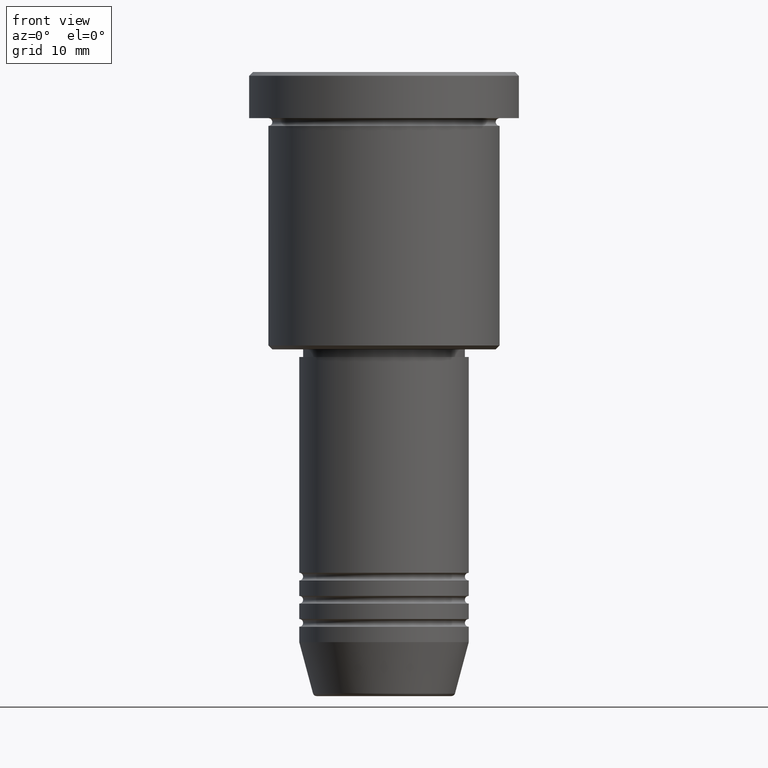
[diagram: clean part render]
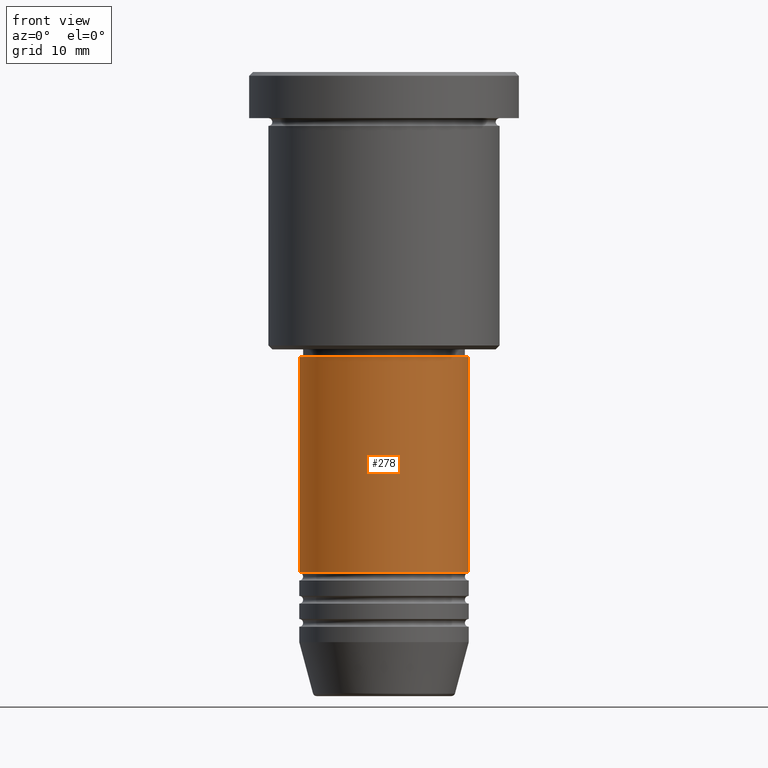
[diagram: same view with one face highlighted and labeled with its STEP entity id]
A machine part, front view. The second image highlights one B-rep face of the part: STEP entity #278.
In plain terms, the highlighted cylindrical surface (partial cylindrical patch) has radius 11 mm, axis along (-0, -0, 1).
Its self-contained STEP definition (entity closure, byte-faithful):
#13 = ORIENTED_EDGE ( 'NONE', *, *, #959, .F. ) ;
#55 = LINE ( 'NONE', #1140, #1036 ) ;
#63 = CIRCLE ( 'NONE', #745, 11.00000000000000000 ) ;
#70 = EDGE_CURVE ( 'NONE', #887, #600, #689, .T. ) ;
#110 = DIRECTION ( 'NONE',  ( -0.000000000000000000, -0.000000000000000000, 1.000000000000000000 ) ) ;
#117 = ORIENTED_EDGE ( 'NONE', *, *, #620, .T. ) ;
#125 = DIRECTION ( 'NONE',  ( 1.000000000000000000, 0.000000000000000000, 0.000000000000000000 ) ) ;
#166 = AXIS2_PLACEMENT_3D ( 'NONE', #584, #1138, #125 ) ;
#177 = CARTESIAN_POINT ( 'NONE',  ( 0.000000000000000000, 0.000000000000000000, 0.000000000000000000 ) ) ;
#212 = EDGE_CURVE ( 'NONE', #785, #753, #55, .T. ) ;
#278 = ADVANCED_FACE ( 'NONE', ( #715 ), #813, .T. ) ;
#301 = CARTESIAN_POINT ( 'NONE',  ( 11.00000000000000000, 0.000000000000000000, -64.99999999999997158 ) ) ;
#305 = ORIENTED_EDGE ( 'NONE', *, *, #212, .T. ) ;
#414 = ORIENTED_EDGE ( 'NONE', *, *, #70, .F. ) ;
#430 = DIRECTION ( 'NONE',  ( -0.000000000000000000, -0.000000000000000000, 1.000000000000000000 ) ) ;
#436 = VECTOR ( 'NONE', #110, 1000.000000000000000 ) ;
#441 = DIRECTION ( 'NONE',  ( -0.000000000000000000, -0.000000000000000000, 1.000000000000000000 ) ) ;
#584 = CARTESIAN_POINT ( 'NONE',  ( 0.000000000000000000, 0.000000000000000000, -37.00000000000000711 ) ) ;
#600 = VERTEX_POINT ( 'NONE', #989 ) ;
#620 = EDGE_CURVE ( 'NONE', #887, #785, #63, .T. ) ;
#689 = LINE ( 'NONE', #937, #436 ) ;
#715 = FACE_OUTER_BOUND ( 'NONE', #987, .T. ) ;
#719 = DIRECTION ( 'NONE',  ( 1.000000000000000000, 0.000000000000000000, 0.000000000000000000 ) ) ;
#745 = AXIS2_PLACEMENT_3D ( 'NONE', #798, #441, #719 ) ;
#753 = VERTEX_POINT ( 'NONE', #1117 ) ;
#779 = AXIS2_PLACEMENT_3D ( 'NONE', #177, #1079, #1103 ) ;
#785 = VERTEX_POINT ( 'NONE', #301 ) ;
#798 = CARTESIAN_POINT ( 'NONE',  ( 0.000000000000000000, 0.000000000000000000, -64.99999999999997158 ) ) ;
#813 = CYLINDRICAL_SURFACE ( 'NONE', #779, 11.00000000000000000 ) ;
#824 = CIRCLE ( 'NONE', #166, 11.00000000000000000 ) ;
#867 = CARTESIAN_POINT ( 'NONE',  ( -11.00000000000000000, 1.347111479062088405E-15, -64.99999999999997158 ) ) ;
#887 = VERTEX_POINT ( 'NONE', #867 ) ;
#937 = CARTESIAN_POINT ( 'NONE',  ( -11.00000000000000000, 1.347111479062088405E-15, 0.000000000000000000 ) ) ;
#959 = EDGE_CURVE ( 'NONE', #600, #753, #824, .T. ) ;
#987 = EDGE_LOOP ( 'NONE', ( #414, #117, #305, #13 ) ) ;
#989 = CARTESIAN_POINT ( 'NONE',  ( -11.00000000000000000, 1.347111479062088405E-15, -37.00000000000000711 ) ) ;
#1036 = VECTOR ( 'NONE', #430, 1000.000000000000000 ) ;
#1079 = DIRECTION ( 'NONE',  ( -0.000000000000000000, -0.000000000000000000, 1.000000000000000000 ) ) ;
#1103 = DIRECTION ( 'NONE',  ( 1.000000000000000000, 0.000000000000000000, 0.000000000000000000 ) ) ;
#1117 = CARTESIAN_POINT ( 'NONE',  ( 11.00000000000000000, 0.000000000000000000, -37.00000000000000711 ) ) ;
#1138 = DIRECTION ( 'NONE',  ( -0.000000000000000000, -0.000000000000000000, 1.000000000000000000 ) ) ;
#1140 = CARTESIAN_POINT ( 'NONE',  ( 11.00000000000000000, 0.000000000000000000, 0.000000000000000000 ) ) ;